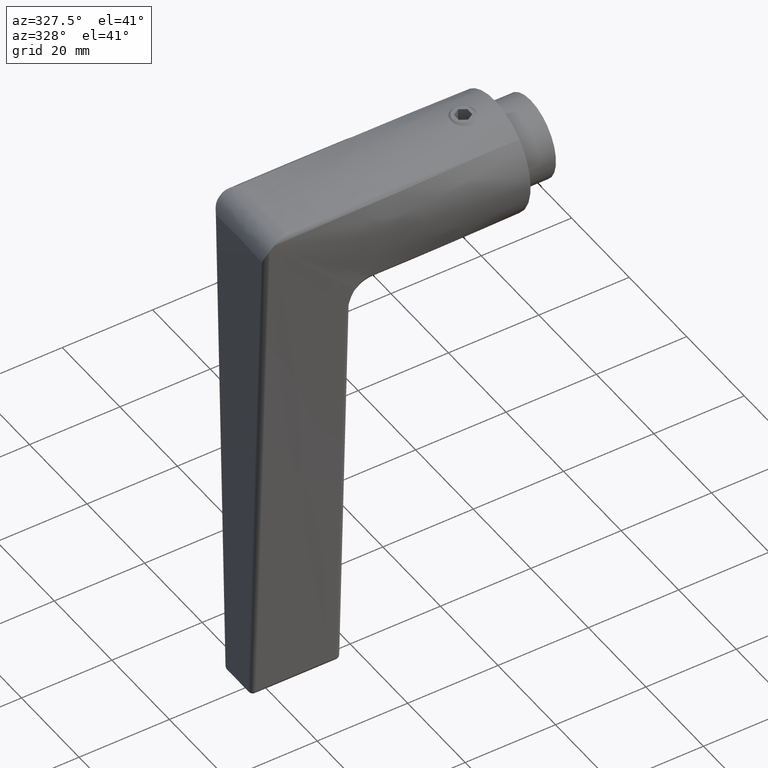
[diagram: clean part render]
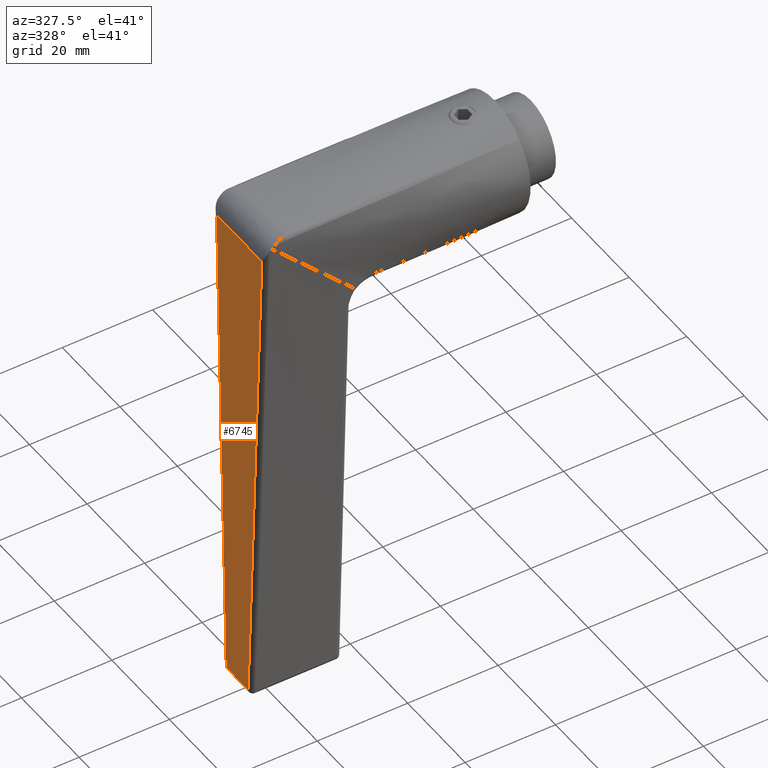
[diagram: same view with one face highlighted and labeled with its STEP entity id]
A machine part, auxiliary view. The second image highlights one B-rep face of the part: STEP entity #6745.
In plain terms, the highlighted planar face has unit normal (-1, 0, 0.004).
Its self-contained STEP definition (entity closure, byte-faithful):
#114 = ORIENTED_EDGE ( 'NONE', *, *, #9077, .T. ) ;
#207 = LINE ( 'NONE', #4369, #10573 ) ;
#702 = CARTESIAN_POINT ( 'NONE',  ( 103.9960360456202153, 3.786715209398712201, 64.99602041843004940 ) ) ;
#982 = CARTESIAN_POINT ( 'NONE',  ( -4.819171679095654248, 2.617860838606901996, 64.56467847423306239 ) ) ;
#1020 = CARTESIAN_POINT ( 'NONE',  ( 103.9960360456202721, -3.786715271010632655, 64.99602018440879192 ) ) ;
#1472 = CARTESIAN_POINT ( 'NONE',  ( -9.545941546018378077, -4.756292987614803399E-15, 64.54594154601838341 ) ) ;
#1741 = CARTESIAN_POINT ( 'NONE',  ( 12.84227860207309213, 7.197763826998897940, 64.63468834897929582 ) ) ;
#1768 = CARTESIAN_POINT ( 'NONE',  ( 85.22754978050819830, -4.488938134831974125, 64.92162215487050503 ) ) ;
#1813 = CARTESIAN_POINT ( 'NONE',  ( 103.9960360456202721, -3.786715271010632655, 64.99602018440879192 ) ) ;
#1997 = CARTESIAN_POINT ( 'NONE',  ( 103.9960360456202153, 3.786715209398712201, 64.99602041843004940 ) ) ;
#2069 = CARTESIAN_POINT ( 'NONE',  ( -4.819170325966326551, -1.309000385707412617, 64.56467835825569068 ) ) ;
#2514 = VERTEX_POINT ( 'NONE', #1020 ) ;
#2577 = CARTESIAN_POINT ( 'NONE',  ( -4.581871413991475350, 7.849940927420733239, 64.56561929072134376 ) ) ;
#3319 = B_SPLINE_CURVE_WITH_KNOTS ( 'NONE', 3,
 ( #2577, #3573, #982, #2069, #11860, #9909, #5106, #5962 ),
 .UNSPECIFIED., .F., .F.,
 ( 4, 2, 2, 4 ),
 ( 0.000000000000000000, 0.007854573419151029967, 0.01178186012872654495, 0.01570914683830205993 ),
 .UNSPECIFIED. ) ;
#3471 = EDGE_LOOP ( 'NONE', ( #4964, #114, #9087, #5854 ) ) ;
#3573 = CARTESIAN_POINT ( 'NONE',  ( -4.728005400572820704, 5.235572423127093700, 64.56503993692935239 ) ) ;
#3629 = CARTESIAN_POINT ( 'NONE',  ( 66.45906611560246802, -5.191230499657109476, 64.84722413563723364 ) ) ;
#3671 = VERTEX_POINT ( 'NONE', #7507 ) ;
#3700 = CARTESIAN_POINT ( 'NONE',  ( 83.70802560012069193, 4.545796820130688864, 64.91559906219394804 ) ) ;
#4369 = CARTESIAN_POINT ( 'NONE',  ( 103.9960360456202011, -1.390757334266506031E-08, 64.99602030141942066 ) ) ;
#4437 = DIRECTION ( 'NONE',  ( 0.9999921435019754057, 2.750545888091408181E-20, 0.003963954379735349504 ) ) ;
#4475 = DIRECTION ( 'NONE',  ( -0.003963954379735347769, -3.090005727818624022E-08, 0.9999921435019749616 ) ) ;
#4602 = CARTESIAN_POINT ( 'NONE',  ( 103.2362737781079574, 3.815141712771852767, 64.99300873267928580 ) ) ;
#4964 = ORIENTED_EDGE ( 'NONE', *, *, #6911, .T. ) ;
#5106 = CARTESIAN_POINT ( 'NONE',  ( -4.654938060751088180, -6.542774030558882181, 64.56532921085216969 ) ) ;
#5534 = VERTEX_POINT ( 'NONE', #10647 ) ;
#5817 = EDGE_CURVE ( 'NONE', #5534, #3671, #3319, .T. ) ;
#5854 = ORIENTED_EDGE ( 'NONE', *, *, #5817, .T. ) ;
#5962 = CARTESIAN_POINT ( 'NONE',  ( -4.581872161489907391, -7.849940977426080657, 64.56561880262719910 ) ) ;
#6563 = CARTESIAN_POINT ( 'NONE',  ( 12.84227796391800425, -7.197763882305165950, 64.63468790162352207 ) ) ;
#6745 = ADVANCED_FACE ( 'NONE', ( #11591 ), #9401, .T. ) ;
#6911 = EDGE_CURVE ( 'NONE', #3671, #2514, #11382, .T. ) ;
#7507 = CARTESIAN_POINT ( 'NONE',  ( -4.581872161489907391, -7.849940977426080657, 64.56561880262719910 ) ) ;
#7562 = CARTESIAN_POINT ( 'NONE',  ( 47.69058508948582187, -5.893593375643561671, 64.77282612686191499 ) ) ;
#7618 = CARTESIAN_POINT ( 'NONE',  ( 102.4765115148561847, 3.843568330018516388, 64.98999704694539048 ) ) ;
#7697 = CARTESIAN_POINT ( 'NONE',  ( 30.26643038965716670, -6.545648243034001723, 64.70375700973643518 ) ) ;
#9077 = EDGE_CURVE ( 'NONE', #2514, #10633, #207, .T. ) ;
#9087 = ORIENTED_EDGE ( 'NONE', *, *, #11888, .T. ) ;
#9401 = PLANE ( 'NONE',  #9934 ) ;
#9570 = CARTESIAN_POINT ( 'NONE',  ( -4.581872161489907391, -7.849940977426080657, 64.56561880262719910 ) ) ;
#9621 = CARTESIAN_POINT ( 'NONE',  ( 101.7167492558676543, 3.871995061210234290, 64.98698536122839187 ) ) ;
#9662 = CARTESIAN_POINT ( 'NONE',  ( -4.581871413991475350, 7.849940927420733239, 64.56561929072134376 ) ) ;
#9909 = CARTESIAN_POINT ( 'NONE',  ( -4.715192057159695693, -5.235108604382639363, 64.56509040528995058 ) ) ;
#9934 = AXIS2_PLACEMENT_3D ( 'NONE', #1472, #4475, #4437 ) ;
#10573 = VECTOR ( 'NONE', #11313, 1000.000000000000114 ) ;
#10615 = CARTESIAN_POINT ( 'NONE',  ( 65.69930433987501317, 5.219662607837230794, 64.84421277265721528 ) ) ;
#10633 = VERTEX_POINT ( 'NONE', #1997 ) ;
#10647 = CARTESIAN_POINT ( 'NONE',  ( -4.581871413991475350, 7.849940927420733239, 64.56561929072134376 ) ) ;
#11218 = B_SPLINE_CURVE_WITH_KNOTS ( 'NONE', 3,
 ( #702, #4602, #7618, #9621, #3700, #10615, #11625, #12618, #1741, #9662 ),
 .UNSPECIFIED., .F., .F.,
 ( 4, 3, 3, 4 ),
 ( 0.001004674303419063417, 0.003285573809167652987, 0.05734997145442791155, 0.1096594350688305658 ),
 .UNSPECIFIED. ) ;
#11313 = DIRECTION ( 'NONE',  ( 1.925929944387235511E-33, 0.9999999999999995559, 3.090030006021027339E-08 ) ) ;
#11382 = B_SPLINE_CURVE_WITH_KNOTS ( 'NONE', 3,
 ( #9570, #6563, #7697, #7562, #3629, #1768, #1813 ),
 .UNSPECIFIED., .F., .F.,
 ( 4, 3, 4 ),
 ( 0.004967584833327164801, 0.05727704877538301875, 0.1136223463462975036 ),
 .UNSPECIFIED. ) ;
#11591 = FACE_OUTER_BOUND ( 'NONE', #3471, .T. ) ;
#11625 = CARTESIAN_POINT ( 'NONE',  ( 47.69058550912203032, 5.893593314214817802, 64.77282649275295512 ) ) ;
#11860 = CARTESIAN_POINT ( 'NONE',  ( -4.797350214575577532, -2.618285655214189322, 64.56476481240400744 ) ) ;
#11888 = EDGE_CURVE ( 'NONE', #10633, #5534, #11218, .T. ) ;
#12618 = CARTESIAN_POINT ( 'NONE',  ( 30.26643091852597678, 6.545648183949362320, 64.70375741635784550 ) ) ;